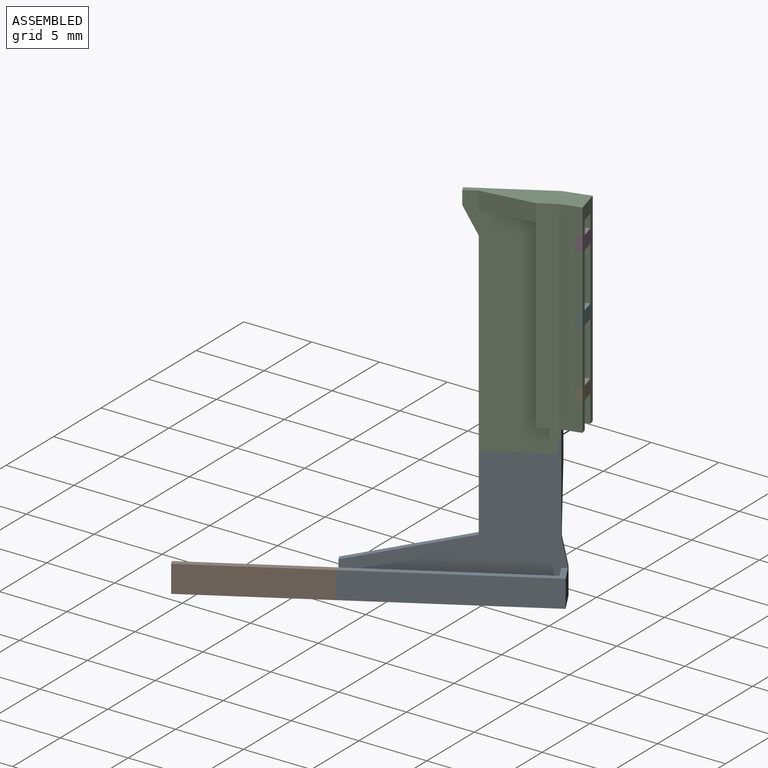
[diagram: assembled view]
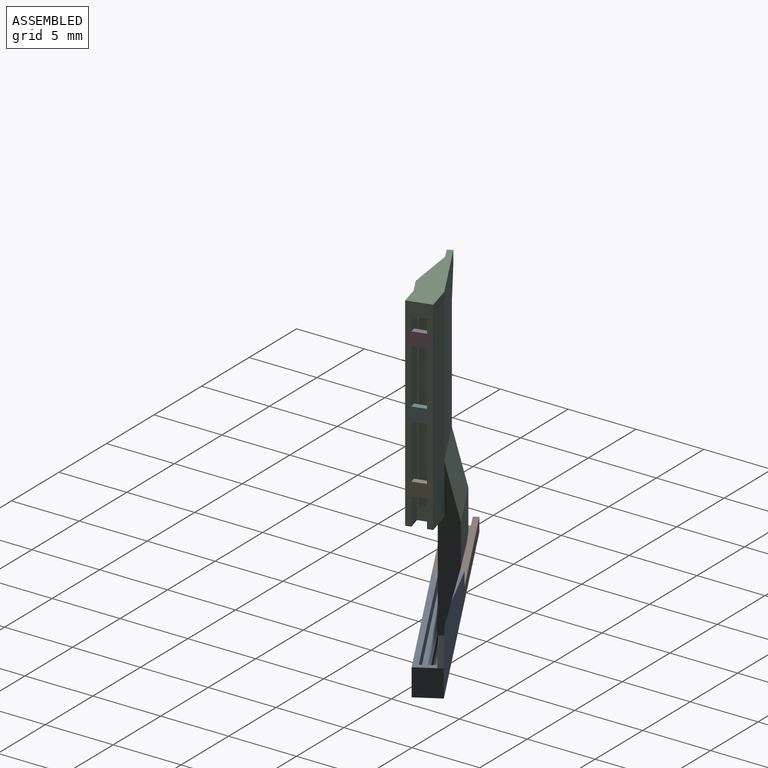
[diagram: assembled view, second angle]
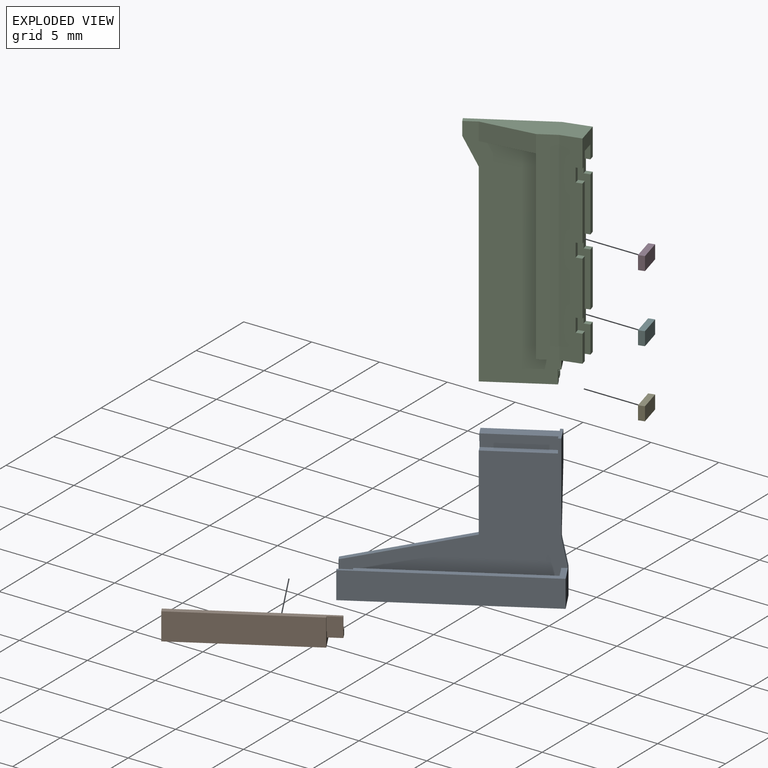
[diagram: exploded view]
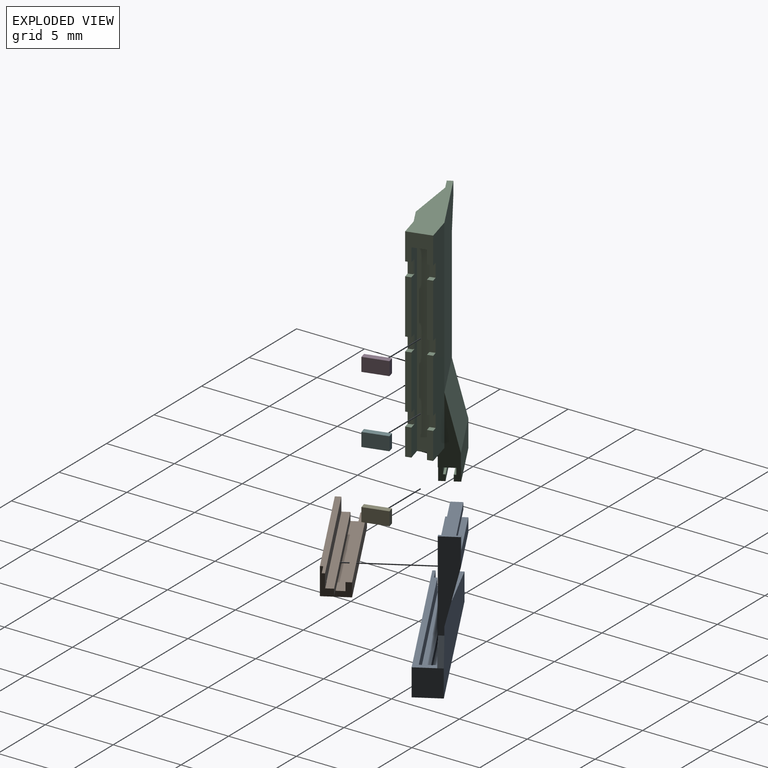
[diagram: exploded view, second angle]
ASSEMBLY  parts=6 mates=5
PART A: 34 faces, bbox 13.9x3x10.6 mm
  f0: plane 2x1.95mm, normal (-1,0,0), area 1.9mm2, adj f1,f3,f9,f10,f12,f13,f15,f29
  f1: plane 1x0.2mm, normal (0,0,-1), area 0.2mm2, adj f0,f30,f31,f32
  f2: plane 12.5x0.6mm, normal (0,-1,0), area 7.5mm2, adj f4,f28,f29,f33
  f3: plane 13.9x1.55mm, normal (0,0,-1), area 5.8mm2, adj f0,f4,f5,f10,f11,f12,f30,f31
  f4: plane 1.6x1.15mm, normal (-1,0,0), area 1.5mm2, adj f2,f3,f5,f10,f28,f29
  f5: plane 12.5x1mm, normal (0,-1,0), area 12.5mm2, adj f3,f4,f28,f31
  f6: plane 6.6x1.4mm, normal (-1,0,0), area 5.8mm2, adj f7,f9,f10,f15,f16,f17,f18,f19
  f7: plane 5x1.4mm, normal (0,0,-1), area 4.1mm2, adj f6,f8,f10,f16,f21,f22,f24,f27
  f8: plane 6.6x1.4mm, normal (1,0,0), area 6.6mm2, adj f7,f9,f10,f14,f16,f17
  f9: plane 13.9x4.6mm, normal (0,-1,0), area 49.7mm2, adj f0,f6,f8,f11,f13,f14,f15,f17
  f10: plane 13.9x10.2mm, normal (0,1,0), area 68.7mm2, adj f0,f3,f4,f6,f7,f8,f14,f15
  f11: plane 2x1.95mm, normal (1,0,0), area 3.9mm2, adj f3,f9,f12,f13,f14
  f12: plane 13.9x2mm, normal (0,1,0), area 27.8mm2, adj f0,f3,f11,f13
  f13: plane 13.9x1.95mm, normal (0,0,1), area 27.1mm2, adj f0,f9,f11,f12
  f14: plane 2x0.4mm, normal (0.98,0,-0.2), area 0.8mm2, adj f8,f9,f10,f11
  f15: plane 8.5x2mm, normal (-0.23,0,-0.97), area 3.5mm2, adj f0,f6,f9,f10
  f16: plane 5x2mm, normal (0,-1,0), area 5.2mm2, adj f6,f7,f8,f17,f18,f22
  f17: plane 5x4mm, normal (0,-0.97,0.24), area 20.6mm2, adj f6,f8,f9,f16
  f18: plane 4.8x0.5mm, normal (0,0,-1), area 2.4mm2, adj f6,f16,f19,f22
  f19: plane 4.8x0.5mm, normal (0,-1,0), area 2.4mm2, adj f6,f18,f20,f22
  f20: plane 4.8x0.2mm, normal (0,0,1), area 1mm2, adj f6,f19,f21,f22
  f21: plane 4.8x0.5mm, normal (0,-1,0), area 2.4mm2, adj f6,f7,f20,f22
  f22: plane 1x0.5mm, normal (-1,0,0), area 0.4mm2, adj f7,f16,f18,f19,f20,f21
  f23: plane 4.8x0.5mm, normal (0,0,-1), area 2.4mm2, adj f6,f10,f26,f27
  f24: plane 4.8x0.5mm, normal (0,1,0), area 2.4mm2, adj f6,f7,f25,f27
  f25: plane 4.8x0.2mm, normal (0,0,1), area 1mm2, adj f6,f24,f26,f27
  f26: plane 4.8x0.5mm, normal (0,1,0), area 2.4mm2, adj f6,f23,f25,f27
  f27: plane 1x0.5mm, normal (-1,0,0), area 0.4mm2, adj f7,f10,f23,f24,f25,f26
  f28: plane 12.5x0.55mm, normal (0,0,-1), area 6.9mm2, adj f2,f4,f5,f33
  f29: plane 13.5x1.15mm, normal (0,0,-1), area 8.7mm2, adj f0,f2,f4,f10,f32,f33
  f30: plane 1x1mm, normal (0,-1,0), area 1mm2, adj f0,f1,f3,f31
  f31: plane 1x0.2mm, normal (-1,0,0), area 0.2mm2, adj f1,f3,f5,f30
  f32: plane 1x0.6mm, normal (0,-1,0), area 0.6mm2, adj f0,f1,f29,f33
  f33: plane 0.6x0.55mm, normal (-1,0,0), area 0.3mm2, adj f2,f28,f29,f32
PART B: 18 faces, bbox 11x2x2 mm
  f0: plane 11x0.6mm, normal (0,1,0), area 6.5mm2, adj f2,f4,f7,f8,f15,f17
  f1: plane 11x1mm, normal (0,1,0), area 11mm2, adj f2,f5,f7,f12,f14
  f2: plane 2x1.95mm, normal (-1,0,0), area 2mm2, adj f0,f1,f3,f5,f6,f7,f8,f9
  f3: plane 10x2mm, normal (0,-1,0), area 20mm2, adj f2,f4,f5,f6
  f4: plane 2x1.95mm, normal (1,0,0), area 1.5mm2, adj f0,f3,f5,f6,f7,f8,f9,f10
  f5: plane 11x0.4mm, normal (0,0,1), area 4.2mm2, adj f1,f2,f3,f4,f13,f14
  f6: plane 10x1.95mm, normal (0,0,-1), area 19.5mm2, adj f2,f3,f4,f10
  f7: plane 11x0.55mm, normal (0,0,1), area 6mm2, adj f0,f1,f2,f4,f16,f17
  f8: plane 10x0.6mm, normal (0,0,1), area 6mm2, adj f0,f2,f4,f11
  f9: plane 10x0.4mm, normal (0,0,1), area 4mm2, adj f2,f4,f10,f11
  f10: plane 10x1mm, normal (0,1,0), area 10mm2, adj f2,f4,f6,f9
  f11: plane 10x0.6mm, normal (0,-1,0), area 6mm2, adj f2,f4,f8,f9
  f12: plane 1x0.2mm, normal (0,0,-1), area 0.2mm2, adj f1,f4,f13,f14
  f13: plane 1x1mm, normal (0,-1,0), area 1mm2, adj f4,f5,f12,f14
  f14: plane 1x0.2mm, normal (1,0,0), area 0.2mm2, adj f1,f5,f12,f13
  f15: plane 1x0.54mm, normal (0,0,-1), area 0.5mm2, adj f0,f4,f16,f17
  f16: plane 1x0.51mm, normal (0,-1,0), area 0.5mm2, adj f4,f7,f15,f17
  f17: plane 0.54x0.51mm, normal (1,0,0), area 0.3mm2, adj f0,f7,f15,f16
PART C: 64 faces, bbox 7.8x3.1x17.3 mm
  f0: plane 1x0.07mm, normal (0,1,0), area 0.1mm2, adj f20,f37,f38,f63
  f1: plane 4x0.4mm, normal (-1,0,0), area 1.6mm2, adj f8,f27,f32,f33
  f2: plane 4x0.4mm, normal (-1,0,0), area 1.6mm2, adj f7,f29,f38,f39
  f3: plane 4x0.4mm, normal (-1,0,0), area 1.6mm2, adj f8,f27,f34,f35
  f4: plane 4x0.4mm, normal (-1,0,0), area 1.6mm2, adj f7,f29,f40,f41
  f5: plane 2x0.4mm, normal (-1,0,0), area 0.8mm2, adj f8,f27,f30,f36
  f6: plane 2x0.4mm, normal (-1,0,0), area 0.8mm2, adj f7,f29,f30,f42
  f7: plane 15x1.5mm, normal (0,-1,0), area 21.2mm2, adj f2,f4,f6,f24,f26,f30,f37,f38
  f8: plane 15x1.98mm, normal (0,1,0), area 28.3mm2, adj f1,f3,f5,f11,f21,f22,f23,f24
  f9: plane 17.3x5.8mm, normal (-0.26,-0.97,0), area 81.8mm2, adj f10,f12,f13,f14,f26,f45,f46,f47
  f10: plane 5.12x2.34mm, normal (0,0,1), area 4.1mm2, adj f9,f13,f46,f48,f50,f54,f56,f59
  f11: plane 11.3x5.8mm, normal (0.26,0.97,0), area 58.5mm2, adj f8,f12,f13,f26,f47,f49
  f12: plane 1x0.39mm, normal (0.97,-0.26,0), area 0.4mm2, adj f9,f11,f26,f47
  f13: plane 14.3x1.35mm, normal (0.97,-0.26,0), area 9.1mm2, adj f9,f10,f11,f47,f48,f49,f50,f51
  f14: plane 13.7x1.11mm, normal (0.97,-0.26,0), area 15.7mm2, adj f9,f15,f30,f45
  f15: plane 13.7x1.35mm, normal (0.26,0.97,0), area 19.2mm2, adj f14,f30,f44,f45
  f16: plane 1x0.05mm, normal (-1,0,0), area 0mm2, adj f17,f29,f41,f42
  f17: plane 1x0.07mm, normal (0,1,0), area 0.1mm2, adj f16,f41,f42,f61
  f18: plane 1x0.05mm, normal (-1,0,0), area 0.1mm2, adj f19,f29,f39,f40
  f19: plane 1x0.07mm, normal (0,1,0), area 0.1mm2, adj f18,f39,f40,f62
  f20: plane 1x0.05mm, normal (-1,0,0), area 0mm2, adj f0,f29,f37,f38
  f21: plane 1x0.4mm, normal (-1,0,0), area 0.4mm2, adj f8,f27,f35,f36
  f22: plane 1x0.4mm, normal (-1,0,0), area 0.4mm2, adj f8,f27,f33,f34
  f23: plane 1x0.4mm, normal (-1,0,0), area 0.4mm2, adj f8,f27,f31,f32
  f24: plane 2x1.8mm, normal (-1,0,0), area 2.6mm2, adj f7,f8,f25,f26,f27,f29,f31,f37
  f25: plane 1x1mm, normal (0,0,1), area 1mm2, adj f24,f27,f28,f29
  f26: plane 7.78x2.16mm, normal (0,0,-1), area 10.2mm2, adj f7,f8,f9,f11,f12,f24,f43,f60
  f27: plane 14x1mm, normal (0,-1,0), area 12.7mm2, adj f1,f3,f5,f21,f22,f23,f24,f25
  f28: plane 14x1mm, normal (-1,0,0), area 14mm2, adj f25,f27,f29,f30
  f29: plane 14x1mm, normal (0,1,0), area 12.5mm2, adj f2,f4,f6,f16,f18,f20,f24,f25
  f30: plane 2.94x2.16mm, normal (0,0,1), area 2.6mm2, adj f5,f6,f7,f8,f14,f15,f27,f28
  f31: plane 0.44x0.4mm, normal (0,0,1), area 0.2mm2, adj f8,f23,f24,f27
  f32: plane 0.44x0.4mm, normal (0,0,-1), area 0.2mm2, adj f1,f8,f23,f27
  f33: plane 0.44x0.4mm, normal (0,0,1), area 0.2mm2, adj f1,f8,f22,f27
  f34: plane 0.44x0.4mm, normal (0,0,-1), area 0.2mm2, adj f3,f8,f22,f27
  f35: plane 0.44x0.4mm, normal (0,0,1), area 0.2mm2, adj f3,f8,f21,f27
  f36: plane 0.44x0.4mm, normal (0,0,-1), area 0.2mm2, adj f5,f8,f21,f27
  f37: plane 0.51x0.4mm, normal (0,0,1), area 0.2mm2, adj f0,f7,f20,f24,f29,f63
  f38: plane 0.51x0.4mm, normal (0,0,-1), area 0.2mm2, adj f0,f2,f7,f20,f29,f63
  f39: plane 0.51x0.4mm, normal (0,0,1), area 0.2mm2, adj f2,f7,f18,f19,f29,f62
  f40: plane 0.51x0.4mm, normal (0,0,-1), area 0.2mm2, adj f4,f7,f18,f19,f29,f62
  f41: plane 0.51x0.4mm, normal (0,0,1), area 0.2mm2, adj f4,f7,f16,f17,f29,f61
  f42: plane 0.51x0.4mm, normal (0,0,-1), area 0.2mm2, adj f6,f7,f16,f17,f29,f61
  f43: plane 15x1.35mm, normal (-0.26,-0.97,0), area 21mm2, adj f7,f26,f30,f44,f60
  f44: plane 13.7x0.31mm, normal (0.97,-0.26,0), area 4.4mm2, adj f15,f30,f43,f45
  f45: plane 5.13x1.77mm, normal (0,0,1), area 4.2mm2, adj f9,f14,f15,f44,f60
  f46: plane 5x1.35mm, normal (-0.97,0.26,0), area 3.5mm2, adj f8,f9,f10,f30,f48,f49
  f47: plane 2x1.07mm, normal (0.86,-0.23,0.45), area 0.9mm2, adj f9,f11,f12,f13
  f48: plane 4.83x2mm, normal (0.26,0.97,0), area 9.8mm2, adj f10,f13,f46,f49,f57,f59
  f49: plane 5.09x4mm, normal (0.25,0.94,-0.24), area 20.6mm2, adj f11,f13,f46,f48
  f50: plane 4.64x1.23mm, normal (0.26,0.97,0), area 2.6mm2, adj f10,f13,f51,f54
  f51: plane 4.68x1.37mm, normal (0,0,-1), area 0.7mm2, adj f13,f50,f52,f54
  f52: plane 4.64x1.23mm, normal (0.26,0.97,0), area 2.2mm2, adj f13,f51,f53,f54
  f53: plane 4.76x1.66mm, normal (0,0,1), area 2.2mm2, adj f9,f13,f52,f54
  f54: plane 1x0.44mm, normal (-0.97,0.26,0), area 0.4mm2, adj f9,f10,f50,f51,f52,f53
  f55: plane 4.68x1.37mm, normal (0,0,-1), area 0.7mm2, adj f13,f56,f58,f59
  f56: plane 4.64x1.23mm, normal (-0.26,-0.97,0), area 2.6mm2, adj f10,f13,f55,f59
  f57: plane 4.76x1.66mm, normal (0,0,1), area 2.2mm2, adj f13,f48,f58,f59
  f58: plane 4.64x1.23mm, normal (-0.26,-0.97,0), area 2.2mm2, adj f13,f55,f57,f59
  f59: plane 1x0.44mm, normal (-0.97,0.26,0), area 0.4mm2, adj f10,f48,f55,f56,f57,f58
  f60: plane 3.85x1.3mm, normal (0.13,-0.99,0), area 5.1mm2, adj f9,f26,f43,f45
  f61: plane 1x0.35mm, normal (-1,0,0), area 0.3mm2, adj f7,f17,f41,f42
  f62: plane 1x0.35mm, normal (-1,0,0), area 0.3mm2, adj f7,f19,f39,f40
  f63: plane 1x0.35mm, normal (-1,0,0), area 0.3mm2, adj f0,f7,f37,f38
PART D: 6 faces, bbox 1.8x1x0.5 mm
  f0: plane 1x0.45mm, normal (-1,0,0), area 0.5mm2, adj f1,f3,f4,f5
  f1: plane 1.8x0.45mm, normal (0,-1,0), area 0.8mm2, adj f0,f2,f4,f5
  f2: plane 1x0.45mm, normal (1,0,0), area 0.5mm2, adj f1,f3,f4,f5
  f3: plane 1.8x0.45mm, normal (0,1,0), area 0.8mm2, adj f0,f2,f4,f5
  f4: plane 1.8x1mm, normal (0,0,1), area 1.8mm2, adj f0,f1,f2,f3
  f5: plane 1.8x1mm, normal (0,0,-1), area 1.8mm2, adj f0,f1,f2,f3
PART E: same geometry as D
PART F: same geometry as D
PLACE A rot(axis=(0.97,0.26,0),180deg) t=(-12.9,-8.66,-5.13)mm
PLACE B rot(axis=(0,0,1),29.8deg) t=(-20.61,-15.32,-5.13)mm
PLACE C rot(axis=(-0.13,0.99,0),180deg) t=(1.18,-3.16,21.77)mm
PLACE D rot(axis=(-0.68,0.52,-0.52),111.8deg) t=(0.28,-1.54,19.77)mm
PLACE E rot(axis=(-0.68,0.52,-0.52),111.8deg) t=(0.28,-1.54,9.77)mm
PLACE F rot(axis=(-0.68,0.52,-0.52),111.8deg) t=(0.28,-1.54,14.77)mm
MATE fastened D.f4 <-> C.f24  axis (0.97,0.26,0) through (0.72,-1.43,19.77)mm
MATE fastened E.f4 <-> C.f3  axis (0.97,0.26,0) through (0.72,-1.43,9.77)mm
MATE fastened B.f10 <-> A.f9  axis (-0.5,0.87,0) through (-12.9,-8.66,-5.13)mm
MATE fastened A.f6 <-> C.f13  axis (-0.87,-0.5,0) through (-6.03,-3.56,4.47)mm
MATE fastened F.f4 <-> C.f1  axis (0.97,0.26,0) through (0.72,-1.43,14.77)mm
